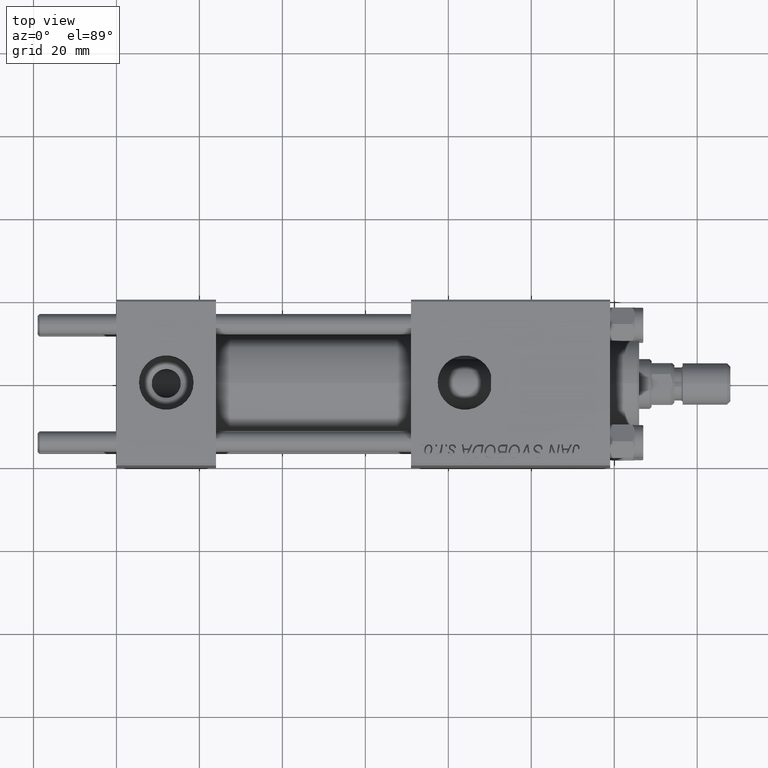
[diagram: clean part render]
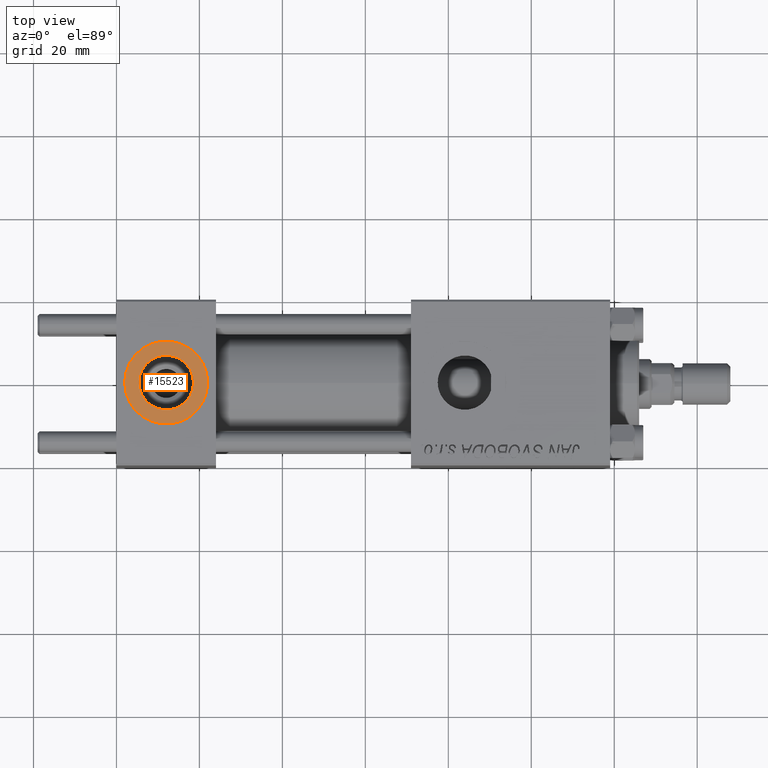
[diagram: same view with one face highlighted and labeled with its STEP entity id]
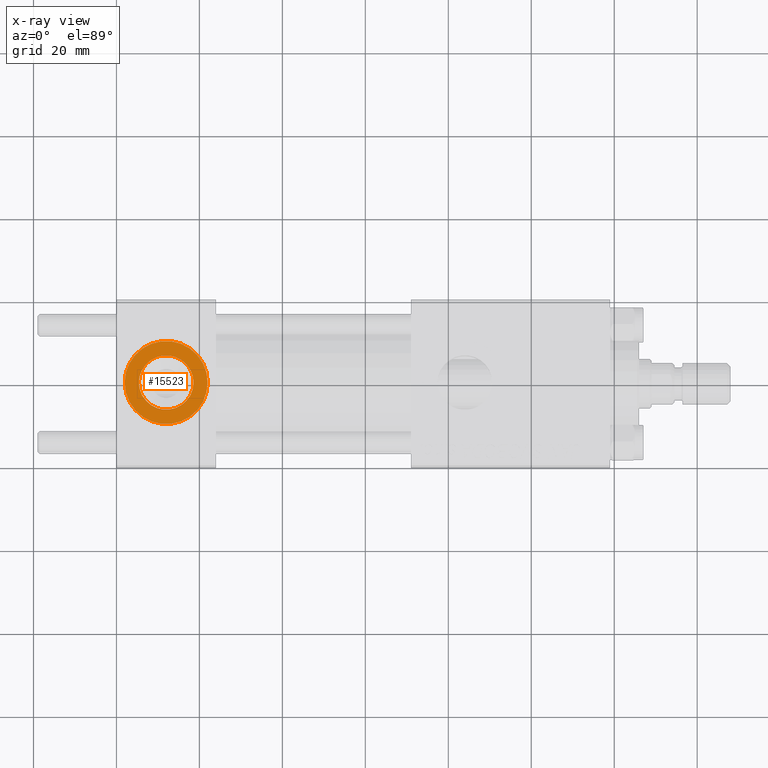
[diagram: x-ray of the same camera — body ghosted, the highlighted face saturated]
A machine part, top view. The second image highlights one B-rep face of the part: STEP entity #15523.
The next image is the same camera in x-ray: the body ghosted, the highlighted face saturated — about 0% of this face is hidden behind the body in this view.
In plain terms, the highlighted planar face has unit normal (0, 0, 1).
Its self-contained STEP definition (entity closure, byte-faithful):
#495 = CIRCLE ( 'NONE', #7013, 6.579999999999999183 ) ;
#518 = DIRECTION ( 'NONE',  ( 0.000000000000000000, 0.000000000000000000, 1.000000000000000000 ) ) ;
#1095 = CARTESIAN_POINT ( 'NONE',  ( 12.00000000000000000, 1.540743955509788682E-30, 19.79999999999999716 ) ) ;
#7013 = AXIS2_PLACEMENT_3D ( 'NONE', #21890, #18081, #39109 ) ;
#8678 = AXIS2_PLACEMENT_3D ( 'NONE', #39385, #518, #16034 ) ;
#11161 = AXIS2_PLACEMENT_3D ( 'NONE', #24623, #28956, #33012 ) ;
#11476 = DIRECTION ( 'NONE',  ( 0.000000000000000000, 0.000000000000000000, 1.000000000000000000 ) ) ;
#11820 = ORIENTED_EDGE ( 'NONE', *, *, #45960, .T. ) ;
#12524 = ORIENTED_EDGE ( 'NONE', *, *, #42738, .F. ) ;
#12799 = DIRECTION ( 'NONE',  ( 1.000000000000000000, 0.000000000000000000, 0.000000000000000000 ) ) ;
#14126 = VERTEX_POINT ( 'NONE', #18251 ) ;
#14974 = VERTEX_POINT ( 'NONE', #39075 ) ;
#15523 = ADVANCED_FACE ( 'NONE', ( #19847, #16544 ), #32039, .T. ) ;
#16034 = DIRECTION ( 'NONE',  ( 1.000000000000000000, 0.000000000000000000, 0.000000000000000000 ) ) ;
#16544 = FACE_OUTER_BOUND ( 'NONE', #25478, .T. ) ;
#16606 = DIRECTION ( 'NONE',  ( 0.000000000000000000, 0.000000000000000000, 1.000000000000000000 ) ) ;
#17637 = CIRCLE ( 'NONE', #8678, 9.999999999999998224 ) ;
#17668 = AXIS2_PLACEMENT_3D ( 'NONE', #1095, #16606, #12799 ) ;
#18081 = DIRECTION ( 'NONE',  ( 0.000000000000000000, 0.000000000000000000, 1.000000000000000000 ) ) ;
#18251 = CARTESIAN_POINT ( 'NONE',  ( 2.000000000000003553, 1.224646799147354440E-15, 19.79999999999999716 ) ) ;
#19847 = FACE_BOUND ( 'NONE', #42777, .T. ) ;
#21890 = CARTESIAN_POINT ( 'NONE',  ( 12.00000000000000000, 1.540743955509788682E-30, 19.79999999999999716 ) ) ;
#21998 = CARTESIAN_POINT ( 'NONE',  ( 5.420000000000000817, 8.058175938389596335E-16, 19.79999999999999716 ) ) ;
#24623 = CARTESIAN_POINT ( 'NONE',  ( 12.00000000000000000, 1.540743955509788682E-30, 19.79999999999999716 ) ) ;
#25478 = EDGE_LOOP ( 'NONE', ( #11820, #43389 ) ) ;
#26966 = DIRECTION ( 'NONE',  ( 1.000000000000000000, 0.000000000000000000, -0.000000000000000000 ) ) ;
#28956 = DIRECTION ( 'NONE',  ( 0.000000000000000000, 0.000000000000000000, 1.000000000000000000 ) ) ;
#31323 = CARTESIAN_POINT ( 'NONE',  ( 22.00000000000000000, 1.540743955509788682E-30, 19.79999999999999716 ) ) ;
#32039 = PLANE ( 'NONE',  #32884 ) ;
#32884 = AXIS2_PLACEMENT_3D ( 'NONE', #35081, #11476, #26966 ) ;
#33012 = DIRECTION ( 'NONE',  ( 1.000000000000000000, 0.000000000000000000, 0.000000000000000000 ) ) ;
#33108 = VERTEX_POINT ( 'NONE', #31323 ) ;
#35081 = CARTESIAN_POINT ( 'NONE',  ( 12.00000000000000000, 1.540743955509788682E-30, 19.79999999999999716 ) ) ;
#36155 = VERTEX_POINT ( 'NONE', #21998 ) ;
#39075 = CARTESIAN_POINT ( 'NONE',  ( 18.57999999999999829, 1.540743955509788682E-30, 19.79999999999999716 ) ) ;
#39109 = DIRECTION ( 'NONE',  ( 1.000000000000000000, 0.000000000000000000, 0.000000000000000000 ) ) ;
#39385 = CARTESIAN_POINT ( 'NONE',  ( 12.00000000000000000, 1.540743955509788682E-30, 19.79999999999999716 ) ) ;
#39498 = EDGE_CURVE ( 'NONE', #14974, #36155, #495, .T. ) ;
#42738 = EDGE_CURVE ( 'NONE', #36155, #14974, #49274, .T. ) ;
#42777 = EDGE_LOOP ( 'NONE', ( #45079, #12524 ) ) ;
#43389 = ORIENTED_EDGE ( 'NONE', *, *, #46943, .T. ) ;
#45079 = ORIENTED_EDGE ( 'NONE', *, *, #39498, .F. ) ;
#45960 = EDGE_CURVE ( 'NONE', #33108, #14126, #17637, .T. ) ;
#46943 = EDGE_CURVE ( 'NONE', #14126, #33108, #48484, .T. ) ;
#48484 = CIRCLE ( 'NONE', #17668, 9.999999999999998224 ) ;
#49274 = CIRCLE ( 'NONE', #11161, 6.579999999999999183 ) ;